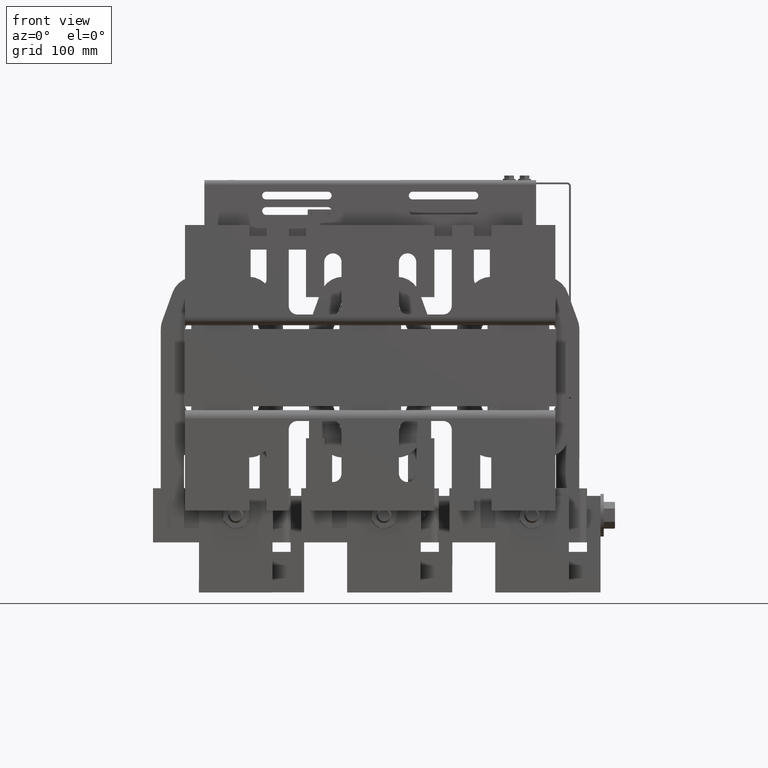
[diagram: clean part render]
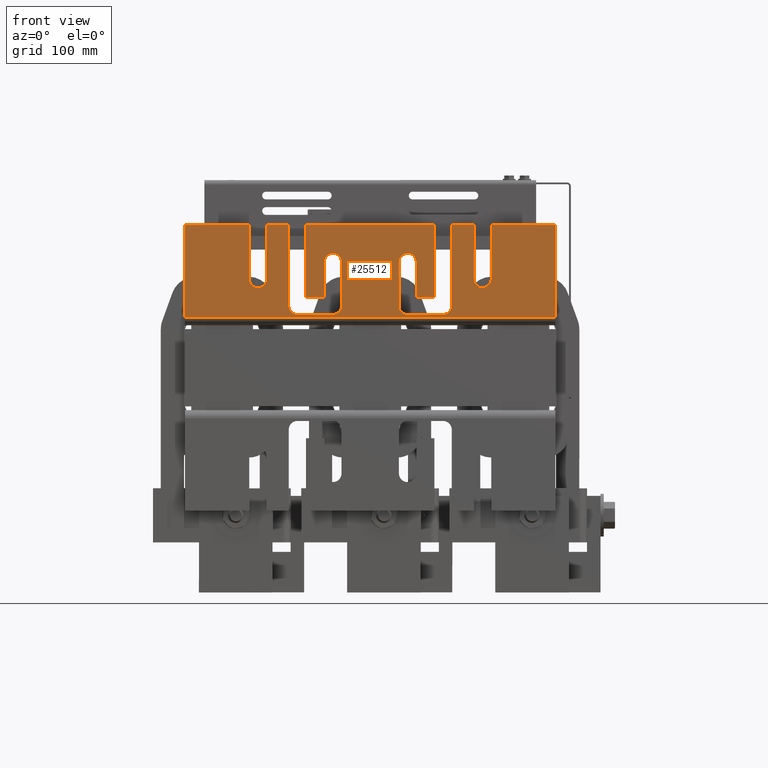
[diagram: same view with one face highlighted and labeled with its STEP entity id]
A machine part, front view. The second image highlights one B-rep face of the part: STEP entity #25512.
In plain terms, the highlighted planar face has unit normal (0, -1, 0).
Its self-contained STEP definition (entity closure, byte-faithful):
#2126=PLANE('',#27932);
#3009=FACE_OUTER_BOUND('',#4472,.T.);
#4472=EDGE_LOOP('',(#18525,#18526,#18527,#18528,#18529,#18530,#18531,#18532,
#18533,#18534,#18535,#18536,#18537,#18538,#18539,#18540,#18541,#18542,#18543,
#18544,#18545,#18546,#18547,#18548,#18549,#18550,#18551,#18552,#18553,#18554,
#18555,#18556));
#6255=LINE('',#37696,#8658);
#6259=LINE('',#37703,#8662);
#6263=LINE('',#37717,#8666);
#6267=LINE('',#37724,#8670);
#6270=LINE('',#37732,#8673);
#6274=LINE('',#37744,#8677);
#6278=LINE('',#37756,#8681);
#6282=LINE('',#37765,#8685);
#6285=LINE('',#37771,#8688);
#6288=LINE('',#37777,#8691);
#6292=LINE('',#37789,#8695);
#6296=LINE('',#37801,#8699);
#6299=LINE('',#37807,#8702);
#6302=LINE('',#37813,#8705);
#6306=LINE('',#37822,#8709);
#6310=LINE('',#37834,#8713);
#6320=LINE('',#37853,#8723);
#6321=LINE('',#37856,#8724);
#6323=LINE('',#37859,#8726);
#6324=LINE('',#37861,#8727);
#6328=LINE('',#37885,#8731);
#6333=LINE('',#37895,#8736);
#6341=LINE('',#37915,#8744);
#6342=LINE('',#37917,#8745);
#8658=VECTOR('',#30691,0.393700787401575);
#8662=VECTOR('',#30697,0.393700787401575);
#8666=VECTOR('',#30709,0.393700787401575);
#8670=VECTOR('',#30715,0.393700787401575);
#8673=VECTOR('',#30720,0.393700787401575);
#8677=VECTOR('',#30732,0.393700787401575);
#8681=VECTOR('',#30744,0.393700787401575);
#8685=VECTOR('',#30750,0.393700787401575);
#8688=VECTOR('',#30755,0.393700787401575);
#8691=VECTOR('',#30760,0.393700787401575);
#8695=VECTOR('',#30772,0.393700787401575);
#8699=VECTOR('',#30784,0.393700787401575);
#8702=VECTOR('',#30789,0.393700787401575);
#8705=VECTOR('',#30794,0.393700787401575);
#8709=VECTOR('',#30800,0.393700787401575);
#8713=VECTOR('',#30812,0.393700787401575);
#8723=VECTOR('',#30832,0.393700787401575);
#8724=VECTOR('',#30835,0.393700787401575);
#8726=VECTOR('',#30839,0.393700787401575);
#8727=VECTOR('',#30842,0.393700787401575);
#8731=VECTOR('',#30868,0.393700787401575);
#8736=VECTOR('',#30877,0.393700787401575);
#8744=VECTOR('',#30899,0.393700787401575);
#8745=VECTOR('',#30902,0.393700787401575);
#10857=CIRCLE('',#27869,0.281000000000001);
#10859=CIRCLE('',#27874,0.281);
#10861=CIRCLE('',#27880,0.281);
#10863=CIRCLE('',#27884,0.281);
#10865=CIRCLE('',#27891,0.281);
#10867=CIRCLE('',#27895,0.281);
#10869=CIRCLE('',#27902,0.281000000000001);
#10871=CIRCLE('',#27906,0.281);
#11814=VERTEX_POINT('',#37687);
#11815=VERTEX_POINT('',#37689);
#11817=VERTEX_POINT('',#37695);
#11819=VERTEX_POINT('',#37701);
#11822=VERTEX_POINT('',#37708);
#11823=VERTEX_POINT('',#37710);
#11825=VERTEX_POINT('',#37716);
#11827=VERTEX_POINT('',#37722);
#11830=VERTEX_POINT('',#37729);
#11831=VERTEX_POINT('',#37731);
#11833=VERTEX_POINT('',#37737);
#11835=VERTEX_POINT('',#37743);
#11837=VERTEX_POINT('',#37749);
#11839=VERTEX_POINT('',#37755);
#11842=VERTEX_POINT('',#37762);
#11843=VERTEX_POINT('',#37764);
#11845=VERTEX_POINT('',#37770);
#11847=VERTEX_POINT('',#37776);
#11850=VERTEX_POINT('',#37786);
#11851=VERTEX_POINT('',#37788);
#11853=VERTEX_POINT('',#37794);
#11855=VERTEX_POINT('',#37800);
#11857=VERTEX_POINT('',#37806);
#11859=VERTEX_POINT('',#37812);
#11862=VERTEX_POINT('',#37819);
#11863=VERTEX_POINT('',#37821);
#11865=VERTEX_POINT('',#37827);
#11867=VERTEX_POINT('',#37833);
#11872=VERTEX_POINT('',#37855);
#11879=VERTEX_POINT('',#37881);
#11881=VERTEX_POINT('',#37884);
#11889=VERTEX_POINT('',#37913);
#14320=EDGE_CURVE('',#11815,#11814,#10857,.T.);
#14323=EDGE_CURVE('',#11817,#11815,#6255,.T.);
#14327=EDGE_CURVE('',#11814,#11819,#6259,.T.);
#14330=EDGE_CURVE('',#11823,#11822,#10859,.T.);
#14333=EDGE_CURVE('',#11825,#11823,#6263,.T.);
#14337=EDGE_CURVE('',#11822,#11827,#6267,.T.);
#14340=EDGE_CURVE('',#11831,#11830,#6270,.T.);
#14343=EDGE_CURVE('',#11833,#11831,#10861,.T.);
#14346=EDGE_CURVE('',#11835,#11833,#6274,.T.);
#14349=EDGE_CURVE('',#11837,#11835,#10863,.T.);
#14352=EDGE_CURVE('',#11839,#11837,#6278,.T.);
#14356=EDGE_CURVE('',#11843,#11842,#6282,.T.);
#14359=EDGE_CURVE('',#11845,#11843,#6285,.T.);
#14362=EDGE_CURVE('',#11847,#11845,#6288,.T.);
#14365=EDGE_CURVE('',#11830,#11847,#10865,.T.);
#14368=EDGE_CURVE('',#11851,#11850,#6292,.T.);
#14371=EDGE_CURVE('',#11853,#11851,#10867,.T.);
#14374=EDGE_CURVE('',#11855,#11853,#6296,.T.);
#14377=EDGE_CURVE('',#11857,#11855,#6299,.T.);
#14380=EDGE_CURVE('',#11859,#11857,#6302,.T.);
#14384=EDGE_CURVE('',#11863,#11862,#6306,.T.);
#14387=EDGE_CURVE('',#11865,#11863,#10869,.T.);
#14390=EDGE_CURVE('',#11867,#11865,#6310,.T.);
#14393=EDGE_CURVE('',#11850,#11867,#10871,.T.);
#14402=EDGE_CURVE('',#11842,#11859,#6320,.T.);
#14403=EDGE_CURVE('',#11872,#11825,#6321,.T.);
#14405=EDGE_CURVE('',#11827,#11839,#6323,.T.);
#14406=EDGE_CURVE('',#11862,#11817,#6324,.T.);
#14417=EDGE_CURVE('',#11881,#11879,#6328,.T.);
#14423=EDGE_CURVE('',#11819,#11881,#6333,.T.);
#14433=EDGE_CURVE('',#11879,#11889,#6341,.T.);
#14434=EDGE_CURVE('',#11889,#11872,#6342,.T.);
#18525=ORIENTED_EDGE('',*,*,#14327,.T.);
#18526=ORIENTED_EDGE('',*,*,#14423,.T.);
#18527=ORIENTED_EDGE('',*,*,#14417,.T.);
#18528=ORIENTED_EDGE('',*,*,#14433,.T.);
#18529=ORIENTED_EDGE('',*,*,#14434,.T.);
#18530=ORIENTED_EDGE('',*,*,#14403,.T.);
#18531=ORIENTED_EDGE('',*,*,#14333,.T.);
#18532=ORIENTED_EDGE('',*,*,#14330,.T.);
#18533=ORIENTED_EDGE('',*,*,#14337,.T.);
#18534=ORIENTED_EDGE('',*,*,#14405,.T.);
#18535=ORIENTED_EDGE('',*,*,#14352,.T.);
#18536=ORIENTED_EDGE('',*,*,#14349,.T.);
#18537=ORIENTED_EDGE('',*,*,#14346,.T.);
#18538=ORIENTED_EDGE('',*,*,#14343,.T.);
#18539=ORIENTED_EDGE('',*,*,#14340,.T.);
#18540=ORIENTED_EDGE('',*,*,#14365,.T.);
#18541=ORIENTED_EDGE('',*,*,#14362,.T.);
#18542=ORIENTED_EDGE('',*,*,#14359,.T.);
#18543=ORIENTED_EDGE('',*,*,#14356,.T.);
#18544=ORIENTED_EDGE('',*,*,#14402,.T.);
#18545=ORIENTED_EDGE('',*,*,#14380,.T.);
#18546=ORIENTED_EDGE('',*,*,#14377,.T.);
#18547=ORIENTED_EDGE('',*,*,#14374,.T.);
#18548=ORIENTED_EDGE('',*,*,#14371,.T.);
#18549=ORIENTED_EDGE('',*,*,#14368,.T.);
#18550=ORIENTED_EDGE('',*,*,#14393,.T.);
#18551=ORIENTED_EDGE('',*,*,#14390,.T.);
#18552=ORIENTED_EDGE('',*,*,#14387,.T.);
#18553=ORIENTED_EDGE('',*,*,#14384,.T.);
#18554=ORIENTED_EDGE('',*,*,#14406,.T.);
#18555=ORIENTED_EDGE('',*,*,#14323,.T.);
#18556=ORIENTED_EDGE('',*,*,#14320,.T.);
#25512=ADVANCED_FACE('',(#3009),#2126,.T.);
#27869=AXIS2_PLACEMENT_3D('',#37690,#30685,#30686);
#27874=AXIS2_PLACEMENT_3D('',#37711,#30703,#30704);
#27880=AXIS2_PLACEMENT_3D('',#37738,#30726,#30727);
#27884=AXIS2_PLACEMENT_3D('',#37750,#30738,#30739);
#27891=AXIS2_PLACEMENT_3D('',#37781,#30766,#30767);
#27895=AXIS2_PLACEMENT_3D('',#37795,#30778,#30779);
#27902=AXIS2_PLACEMENT_3D('',#37828,#30806,#30807);
#27906=AXIS2_PLACEMENT_3D('',#37838,#30818,#30819);
#27932=AXIS2_PLACEMENT_3D('',#37916,#30900,#30901);
#30685=DIRECTION('center_axis',(-1.33511259641822E-16,1.,0.));
#30686=DIRECTION('ref_axis',(0.,0.,-1.));
#30691=DIRECTION('',(1.,1.33511259641822E-16,0.));
#30697=DIRECTION('',(-1.,-1.33511259641822E-16,0.));
#30703=DIRECTION('center_axis',(-1.33511259641822E-16,1.,0.));
#30704=DIRECTION('ref_axis',(0.,0.,-1.));
#30709=DIRECTION('',(1.,1.33511259641822E-16,1.99815167536586E-16));
#30715=DIRECTION('',(-1.,-1.33511259641822E-16,-1.99815167536586E-16));
#30720=DIRECTION('',(-1.,-1.33511259641822E-16,0.));
#30726=DIRECTION('center_axis',(-1.33511259641822E-16,1.,0.));
#30727=DIRECTION('ref_axis',(0.,0.,-1.));
#30732=DIRECTION('',(-6.0813311858961E-16,-8.11926186928085E-32,-1.));
#30738=DIRECTION('center_axis',(-1.33511259641822E-16,1.,0.));
#30739=DIRECTION('ref_axis',(1.,1.34771167687437E-16,0.));
#30744=DIRECTION('',(1.,1.33511259641822E-16,0.));
#30750=DIRECTION('',(-1.,-1.33511259641822E-16,-2.98996616664408E-16));
#30755=DIRECTION('',(5.94687998620791E-16,7.93975437897362E-32,1.));
#30760=DIRECTION('',(1.,1.33511259641822E-16,0.));
#30766=DIRECTION('center_axis',(-1.33511259641822E-16,1.,0.));
#30767=DIRECTION('ref_axis',(8.08860331220167E-15,1.17849785226583E-30,
1.));
#30772=DIRECTION('',(1.,1.33511259641822E-16,0.));
#30778=DIRECTION('center_axis',(-1.33511259641822E-16,1.,0.));
#30779=DIRECTION('ref_axis',(-6.22200254784742E-16,-9.06536809435249E-32,
1.));
#30784=DIRECTION('',(-1.,-1.33511259641822E-16,0.));
#30789=DIRECTION('',(5.94687998620792E-16,7.93975437897363E-32,1.));
#30794=DIRECTION('',(1.,1.33511259641822E-16,0.));
#30800=DIRECTION('',(-1.,-1.33511259641822E-16,0.));
#30806=DIRECTION('center_axis',(-1.33511259641822E-16,1.,0.));
#30807=DIRECTION('ref_axis',(0.,0.,-1.));
#30812=DIRECTION('',(6.08133118589609E-16,8.11926186928085E-32,-1.));
#30818=DIRECTION('center_axis',(-1.33511259641822E-16,1.,0.));
#30819=DIRECTION('ref_axis',(1.,1.16558847729675E-16,0.));
#30832=DIRECTION('',(0.,0.,-1.));
#30835=DIRECTION('',(0.,0.,-1.));
#30839=DIRECTION('',(0.,0.,-1.));
#30842=DIRECTION('',(0.,0.,-1.));
#30868=DIRECTION('',(1.,1.33511259641822E-16,0.));
#30877=DIRECTION('',(0.,0.,-1.));
#30899=DIRECTION('',(0.,0.,1.));
#30900=DIRECTION('center_axis',(1.33511259641822E-16,-1.,0.));
#30901=DIRECTION('ref_axis',(0.,0.,-1.));
#30902=DIRECTION('',(-1.,-1.33511259641822E-16,0.));
#37687=CARTESIAN_POINT('',(-1.5,-1.64352360619083E-16,-3.921));
#37689=CARTESIAN_POINT('',(-1.5,-1.64352360619083E-16,-3.359));
#37690=CARTESIAN_POINT('Origin',(-1.5,-1.4348394155523E-16,-3.64));
#37695=CARTESIAN_POINT('',(-3.25,-3.97997064992273E-16,-3.359));
#37696=CARTESIAN_POINT('',(-0.8845,-8.21761803095416E-17,-3.359));
#37701=CARTESIAN_POINT('',(-3.25,-3.97997064992273E-16,-3.921));
#37703=CARTESIAN_POINT('',(-1.7595,-1.98998532496136E-16,-3.921));
#37708=CARTESIAN_POINT('',(-1.5,-1.64352360619083E-16,3.359));
#37710=CARTESIAN_POINT('',(-1.5,-1.64352360619083E-16,3.921));
#37711=CARTESIAN_POINT('Origin',(-1.5,-1.4348394155523E-16,3.64));
#37716=CARTESIAN_POINT('',(-3.25,-3.97997064992273E-16,3.921));
#37717=CARTESIAN_POINT('',(-0.884500000000001,-8.21761803095418E-17,3.921));
#37722=CARTESIAN_POINT('',(-3.25,-3.97997064992273E-16,3.359));
#37724=CARTESIAN_POINT('',(-1.7595,-1.98998532496136E-16,3.359));
#37729=CARTESIAN_POINT('',(-2.05,-2.37783553422086E-16,0.929));
#37731=CARTESIAN_POINT('',(-0.630000000000001,-4.8197564730698E-17,0.929));
#37732=CARTESIAN_POINT('',(-1.1595,-1.18891776711043E-16,0.929));
#37737=CARTESIAN_POINT('',(-0.349000000000001,-1.0680900771346E-17,1.21));
#37738=CARTESIAN_POINT('Origin',(-0.630000000000001,-4.86523915351649E-17,
1.21));
#37743=CARTESIAN_POINT('',(-0.349000000000001,-1.06809007713458E-17,2.36));
#37744=CARTESIAN_POINT('',(-0.349000000000002,-1.0680900771346E-17,0.605));
#37749=CARTESIAN_POINT('',(-0.63,-4.81975647306979E-17,2.641));
#37750=CARTESIAN_POINT('Origin',(-0.63,-4.86523915351648E-17,2.36));
#37755=CARTESIAN_POINT('',(-3.25,-3.97997064992273E-16,2.641));
#37756=CARTESIAN_POINT('',(-0.4495,-2.4098782365349E-17,2.641));
#37762=CARTESIAN_POINT('',(-3.25,-3.97997064992273E-16,2.079));
#37764=CARTESIAN_POINT('',(-0.911,-8.57142286900501E-17,2.079));
#37765=CARTESIAN_POINT('',(-1.7595,-1.98998532496136E-16,2.079));
#37770=CARTESIAN_POINT('',(-0.911000000000001,-8.57142286900501E-17,1.491));
#37771=CARTESIAN_POINT('',(-0.911000000000001,-8.57142286900501E-17,1.0395));
#37776=CARTESIAN_POINT('',(-2.05,-2.37783553422086E-16,1.491));
#37777=CARTESIAN_POINT('',(-0.59,-4.2857114345025E-17,1.491));
#37781=CARTESIAN_POINT('Origin',(-2.05,-2.5948913475819E-16,1.21));
#37786=CARTESIAN_POINT('',(-0.630000000000002,-4.81975647306981E-17,-0.928999999999998));
#37788=CARTESIAN_POINT('',(-2.05,-2.37783553422086E-16,-0.928999999999998));
#37789=CARTESIAN_POINT('',(-0.449500000000001,-2.4098782365349E-17,-0.928999999999998));
#37794=CARTESIAN_POINT('',(-2.05,-2.37783553422086E-16,-1.491));
#37795=CARTESIAN_POINT('Origin',(-2.05,-2.5948913475819E-16,-1.21));
#37800=CARTESIAN_POINT('',(-0.911,-8.57142286900499E-17,-1.491));
#37801=CARTESIAN_POINT('',(-1.1595,-1.18891776711043E-16,-1.491));
#37806=CARTESIAN_POINT('',(-0.911,-8.571422869005E-17,-2.079));
#37807=CARTESIAN_POINT('',(-0.910999999999999,-8.57142286900499E-17,-0.7455));
#37812=CARTESIAN_POINT('',(-3.25,-3.97997064992273E-16,-2.079));
#37813=CARTESIAN_POINT('',(-0.59,-4.2857114345025E-17,-2.079));
#37819=CARTESIAN_POINT('',(-3.25,-3.97997064992273E-16,-2.641));
#37821=CARTESIAN_POINT('',(-0.63,-4.81975647306978E-17,-2.641));
#37822=CARTESIAN_POINT('',(-1.7595,-1.98998532496136E-16,-2.641));
#37827=CARTESIAN_POINT('',(-0.348999999999999,-1.06809007713457E-17,-2.36));
#37828=CARTESIAN_POINT('Origin',(-0.63,-4.20777440304128E-17,-2.36));
#37833=CARTESIAN_POINT('',(-0.349,-1.06809007713458E-17,-1.21));
#37834=CARTESIAN_POINT('',(-0.349,-1.06809007713458E-17,-1.18));
#37838=CARTESIAN_POINT('Origin',(-0.63,-4.20777440304127E-17,-1.21));
#37853=CARTESIAN_POINT('',(-3.25,-3.97997064992273E-16,0.));
#37855=CARTESIAN_POINT('',(-3.25,-3.97997064992273E-16,6.));
#37856=CARTESIAN_POINT('',(-3.25,-3.97997064992273E-16,0.));
#37859=CARTESIAN_POINT('',(-3.25,-3.97997064992273E-16,0.));
#37861=CARTESIAN_POINT('',(-3.25,-3.97997064992273E-16,0.));
#37881=CARTESIAN_POINT('',(-0.269,0.,-6.));
#37884=CARTESIAN_POINT('',(-3.25,-3.97997064992273E-16,-6.));
#37885=CARTESIAN_POINT('',(-3.25,-3.97997064992273E-16,-6.));
#37895=CARTESIAN_POINT('',(-3.25,-3.97997064992273E-16,0.));
#37913=CARTESIAN_POINT('',(-0.269,0.,6.));
#37915=CARTESIAN_POINT('',(-0.269,0.,0.));
#37916=CARTESIAN_POINT('Origin',(-0.269,0.,0.));
#37917=CARTESIAN_POINT('',(-3.25,-3.97997064992273E-16,6.));